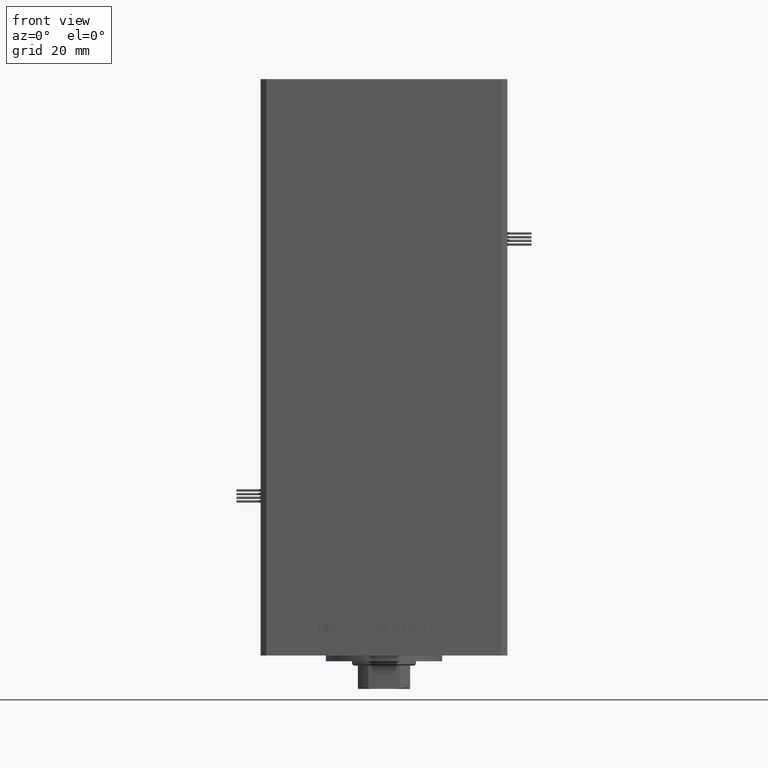
[diagram: clean part render]
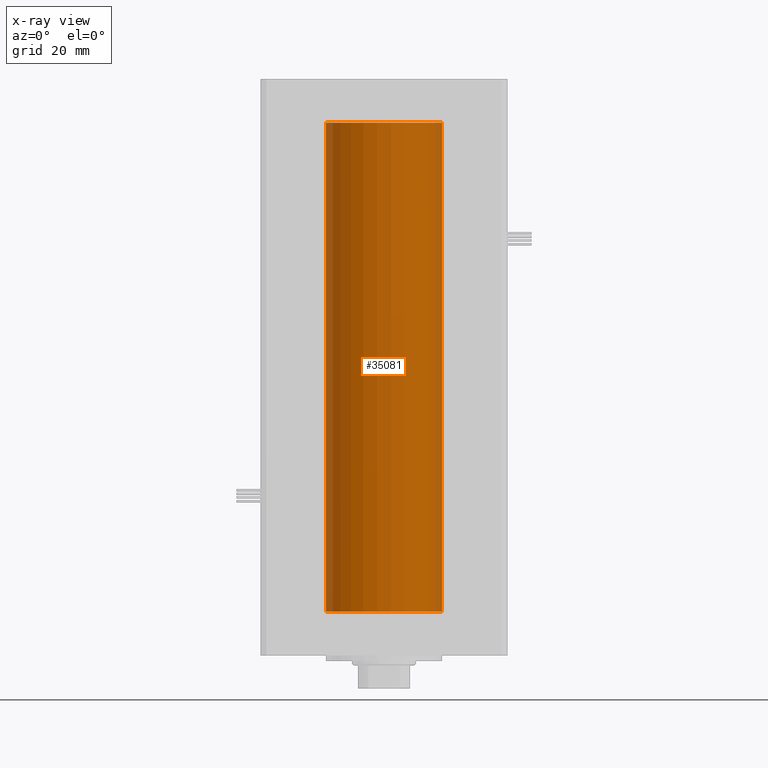
[diagram: x-ray — body ghosted, one internal face saturated and labeled with its STEP entity id]
A machine part, front view, then the same camera in x-ray: the body is ghosted and one INTERNAL B-rep face — a face not visible from any outside direction — is saturated and labeled: STEP entity #35081.
In plain terms, the highlighted cylindrical surface (partial cylindrical patch) has radius 20 mm, axis along (-0, -0, -1).
Its self-contained STEP definition (entity closure, byte-faithful):
#307 = CYLINDRICAL_SURFACE ( 'NONE', #3162, 20.00000000000000000 ) ;
#3162 = AXIS2_PLACEMENT_3D ( 'NONE', #16693, #41275, #12196 ) ;
#4070 = VERTEX_POINT ( 'NONE', #39166 ) ;
#5964 = CARTESIAN_POINT ( 'NONE',  ( 20.00000000000000000, 2.449293598294706513E-15, 0.000000000000000000 ) ) ;
#9526 = CARTESIAN_POINT ( 'NONE',  ( 20.00000000000000000, 2.449293598294706513E-15, 168.5000000000000000 ) ) ;
#11219 = DIRECTION ( 'NONE',  ( 1.000000000000000000, 0.000000000000000000, 0.000000000000000000 ) ) ;
#12112 = CIRCLE ( 'NONE', #25643, 20.00000000000000000 ) ;
#12196 = DIRECTION ( 'NONE',  ( -1.000000000000000000, 0.000000000000000000, 0.000000000000000000 ) ) ;
#13013 = VECTOR ( 'NONE', #49679, 1000.000000000000000 ) ;
#13587 = CARTESIAN_POINT ( 'NONE',  ( -20.00000000000000000, 0.000000000000000000, 168.5000000000000000 ) ) ;
#14431 = AXIS2_PLACEMENT_3D ( 'NONE', #27576, #51365, #44481 ) ;
#15187 = DIRECTION ( 'NONE',  ( -0.000000000000000000, 0.000000000000000000, 1.000000000000000000 ) ) ;
#16693 = CARTESIAN_POINT ( 'NONE',  ( 0.000000000000000000, 0.000000000000000000, 168.5000000000000000 ) ) ;
#16768 = EDGE_CURVE ( 'NONE', #49630, #29364, #35519, .T. ) ;
#17423 = LINE ( 'NONE', #33554, #13013 ) ;
#19332 = CARTESIAN_POINT ( 'NONE',  ( -20.00000000000000000, 0.000000000000000000, 168.5000000000000000 ) ) ;
#23645 = EDGE_CURVE ( 'NONE', #49630, #4070, #36267, .T. ) ;
#25643 = AXIS2_PLACEMENT_3D ( 'NONE', #35291, #15187, #11219 ) ;
#26916 = VERTEX_POINT ( 'NONE', #5964 ) ;
#27576 = CARTESIAN_POINT ( 'NONE',  ( 0.000000000000000000, 0.000000000000000000, 168.5000000000000000 ) ) ;
#28602 = FACE_OUTER_BOUND ( 'NONE', #34687, .T. ) ;
#29364 = VERTEX_POINT ( 'NONE', #9526 ) ;
#33554 = CARTESIAN_POINT ( 'NONE',  ( 20.00000000000000000, 2.449293598294706513E-15, 168.5000000000000000 ) ) ;
#33594 = ORIENTED_EDGE ( 'NONE', *, *, #16768, .T. ) ;
#34687 = EDGE_LOOP ( 'NONE', ( #33594, #42282, #49370, #36246 ) ) ;
#35081 = ADVANCED_FACE ( 'NONE', ( #28602 ), #307, .F. ) ;
#35291 = CARTESIAN_POINT ( 'NONE',  ( 0.000000000000000000, 0.000000000000000000, 0.000000000000000000 ) ) ;
#35519 = CIRCLE ( 'NONE', #14431, 20.00000000000000000 ) ;
#35969 = EDGE_CURVE ( 'NONE', #4070, #26916, #12112, .T. ) ;
#36246 = ORIENTED_EDGE ( 'NONE', *, *, #23645, .F. ) ;
#36267 = LINE ( 'NONE', #19332, #38323 ) ;
#36521 = DIRECTION ( 'NONE',  ( -0.000000000000000000, -0.000000000000000000, -1.000000000000000000 ) ) ;
#38323 = VECTOR ( 'NONE', #36521, 1000.000000000000000 ) ;
#39166 = CARTESIAN_POINT ( 'NONE',  ( -20.00000000000000000, 0.000000000000000000, 0.000000000000000000 ) ) ;
#40906 = EDGE_CURVE ( 'NONE', #29364, #26916, #17423, .T. ) ;
#41275 = DIRECTION ( 'NONE',  ( -0.000000000000000000, -0.000000000000000000, -1.000000000000000000 ) ) ;
#42282 = ORIENTED_EDGE ( 'NONE', *, *, #40906, .T. ) ;
#44481 = DIRECTION ( 'NONE',  ( 1.000000000000000000, 0.000000000000000000, 0.000000000000000000 ) ) ;
#49370 = ORIENTED_EDGE ( 'NONE', *, *, #35969, .F. ) ;
#49630 = VERTEX_POINT ( 'NONE', #13587 ) ;
#49679 = DIRECTION ( 'NONE',  ( -0.000000000000000000, -0.000000000000000000, -1.000000000000000000 ) ) ;
#51365 = DIRECTION ( 'NONE',  ( -0.000000000000000000, 0.000000000000000000, 1.000000000000000000 ) ) ;